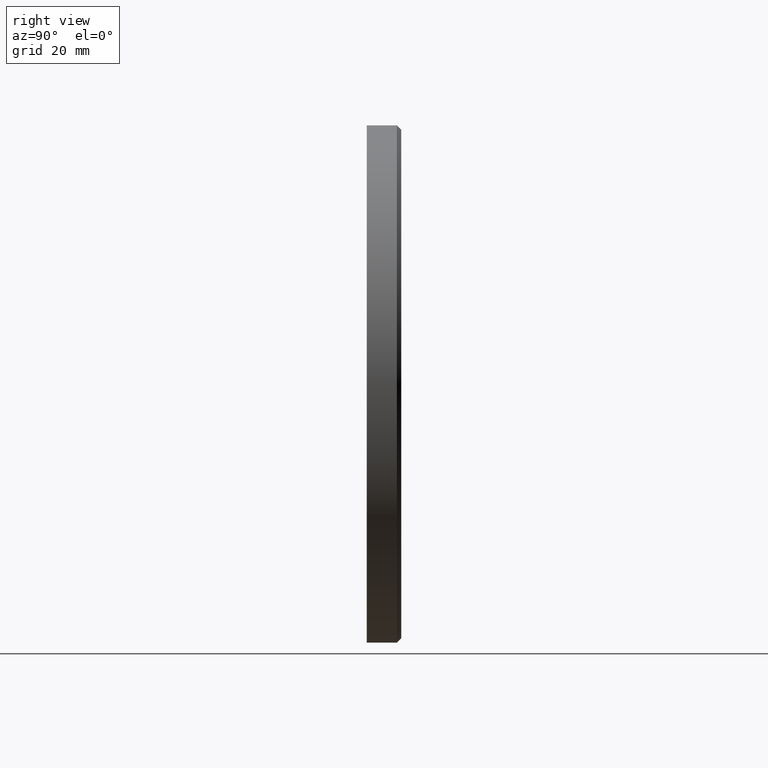
[diagram: clean part render]
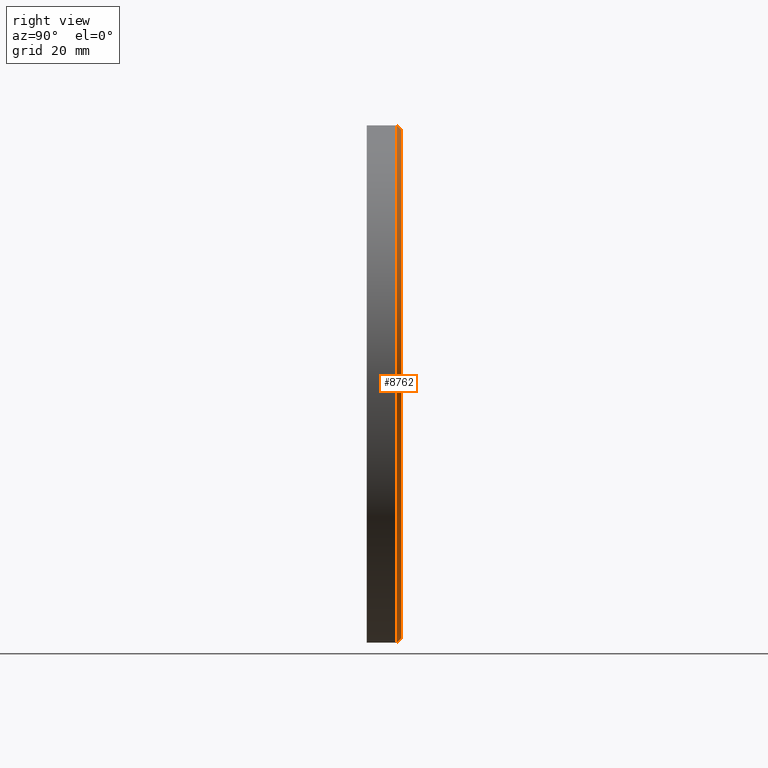
[diagram: same view with one face highlighted and labeled with its STEP entity id]
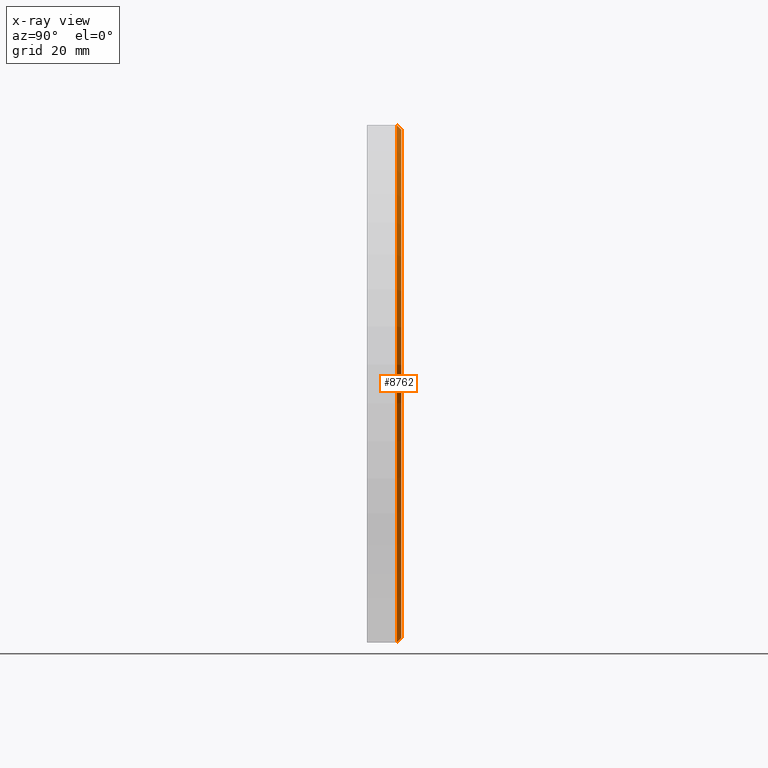
[diagram: x-ray of the same camera — body ghosted, the highlighted face saturated]
A machine part, right view. The second image highlights one B-rep face of the part: STEP entity #8762.
The next image is the same camera in x-ray: the body ghosted, the highlighted face saturated — about 0% of this face is hidden behind the body in this view.
In plain terms, the highlighted conical surface has half-angle 45 deg.
Its self-contained STEP definition (entity closure, byte-faithful):
#624 = CIRCLE ( 'NONE', #2912, 59.00000000000003553 ) ;
#818 = ORIENTED_EDGE ( 'NONE', *, *, #3393, .T. ) ;
#1077 = CARTESIAN_POINT ( 'NONE',  ( 0.000000000000000000, 3.000000000000040856, -60.00000000000000000 ) ) ;
#1477 = CARTESIAN_POINT ( 'NONE',  ( 7.286648454926753937E-15, 4.000000000000000000, 59.00000000000003553 ) ) ;
#1669 = LINE ( 'NONE', #2837, #13851 ) ;
#1697 = VERTEX_POINT ( 'NONE', #1477 ) ;
#2334 = ORIENTED_EDGE ( 'NONE', *, *, #10658, .F. ) ;
#2472 = LINE ( 'NONE', #9759, #3395 ) ;
#2490 = DIRECTION ( 'NONE',  ( 0.000000000000000000, -0.7071067811865474617, -0.7071067811865474617 ) ) ;
#2658 = EDGE_CURVE ( 'NONE', #4591, #15570, #2472, .T. ) ;
#2812 = ORIENTED_EDGE ( 'NONE', *, *, #3347, .F. ) ;
#2837 = CARTESIAN_POINT ( 'NONE',  ( 7.225416114969387941E-15, 4.000000000000000000, 59.00000000000003553 ) ) ;
#2912 = AXIS2_PLACEMENT_3D ( 'NONE', #10381, #10325, #10267 ) ;
#3347 = EDGE_CURVE ( 'NONE', #15570, #6006, #7021, .T. ) ;
#3393 = EDGE_CURVE ( 'NONE', #1697, #6006, #1669, .T. ) ;
#3395 = VECTOR ( 'NONE', #2490, 1000.000000000000114 ) ;
#4011 = CARTESIAN_POINT ( 'NONE',  ( 0.000000000000000000, 4.000000000000000000, 0.000000000000000000 ) ) ;
#4165 = AXIS2_PLACEMENT_3D ( 'NONE', #4011, #11259, #7451 ) ;
#4370 = CARTESIAN_POINT ( 'NONE',  ( 0.000000000000000000, 4.000000000000000000, -59.00000000000003553 ) ) ;
#4591 = VERTEX_POINT ( 'NONE', #4370 ) ;
#6006 = VERTEX_POINT ( 'NONE', #6279 ) ;
#6246 = DIRECTION ( 'NONE',  ( 0.000000000000000000, 0.000000000000000000, 1.000000000000000000 ) ) ;
#6279 = CARTESIAN_POINT ( 'NONE',  ( 7.347880794884118356E-15, 3.000000000000040856, 60.00000000000000000 ) ) ;
#7021 = CIRCLE ( 'NONE', #11193, 60.00000000000000000 ) ;
#7451 = DIRECTION ( 'NONE',  ( 0.000000000000000000, 0.000000000000000000, -1.000000000000000000 ) ) ;
#8762 = ADVANCED_FACE ( 'NONE', ( #8986 ), #12052, .T. ) ;
#8986 = FACE_OUTER_BOUND ( 'NONE', #10012, .T. ) ;
#9759 = CARTESIAN_POINT ( 'NONE',  ( 0.000000000000000000, 4.000000000000000000, -59.00000000000003553 ) ) ;
#10012 = EDGE_LOOP ( 'NONE', ( #2334, #818, #2812, #11166 ) ) ;
#10267 = DIRECTION ( 'NONE',  ( 0.000000000000000000, 0.000000000000000000, 1.000000000000000000 ) ) ;
#10325 = DIRECTION ( 'NONE',  ( 0.000000000000000000, 1.000000000000000000, 0.000000000000000000 ) ) ;
#10381 = CARTESIAN_POINT ( 'NONE',  ( 0.000000000000000000, 4.000000000000000000, 0.000000000000000000 ) ) ;
#10658 = EDGE_CURVE ( 'NONE', #1697, #4591, #624, .T. ) ;
#11166 = ORIENTED_EDGE ( 'NONE', *, *, #2658, .F. ) ;
#11193 = AXIS2_PLACEMENT_3D ( 'NONE', #14619, #14731, #6246 ) ;
#11259 = DIRECTION ( 'NONE',  ( 0.000000000000000000, -1.000000000000000000, 0.000000000000000000 ) ) ;
#12052 = CONICAL_SURFACE ( 'NONE', #4165, 59.00000000000003553, 0.7853981633974482790 ) ;
#12423 = DIRECTION ( 'NONE',  ( 8.659560562354932858E-17, -0.7071067811865474617, 0.7071067811865474617 ) ) ;
#13851 = VECTOR ( 'NONE', #12423, 1000.000000000000114 ) ;
#14619 = CARTESIAN_POINT ( 'NONE',  ( 0.000000000000000000, 3.000000000000040856, 0.000000000000000000 ) ) ;
#14731 = DIRECTION ( 'NONE',  ( 0.000000000000000000, -1.000000000000000000, 0.000000000000000000 ) ) ;
#15570 = VERTEX_POINT ( 'NONE', #1077 ) ;